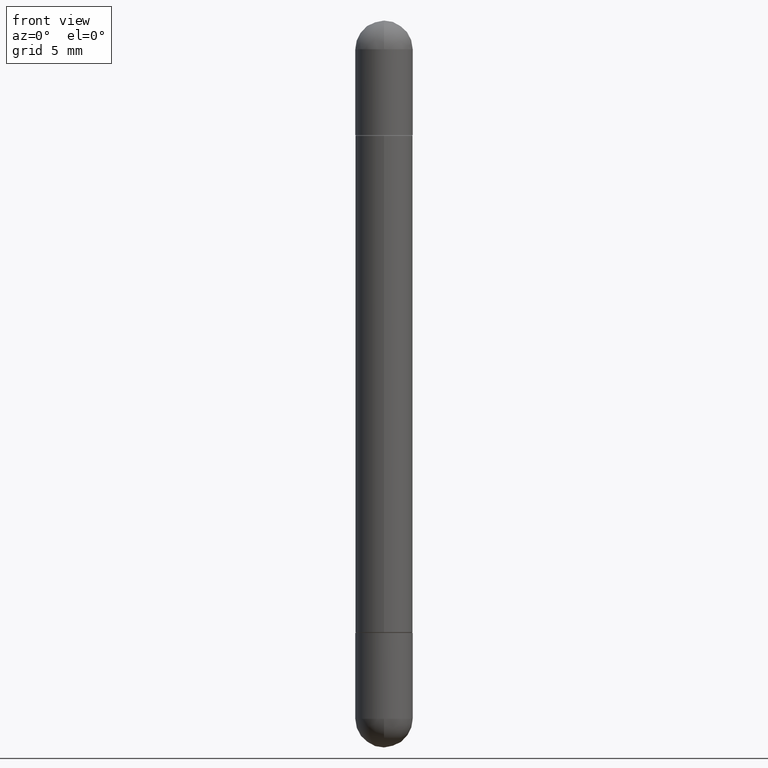
[diagram: clean part render]
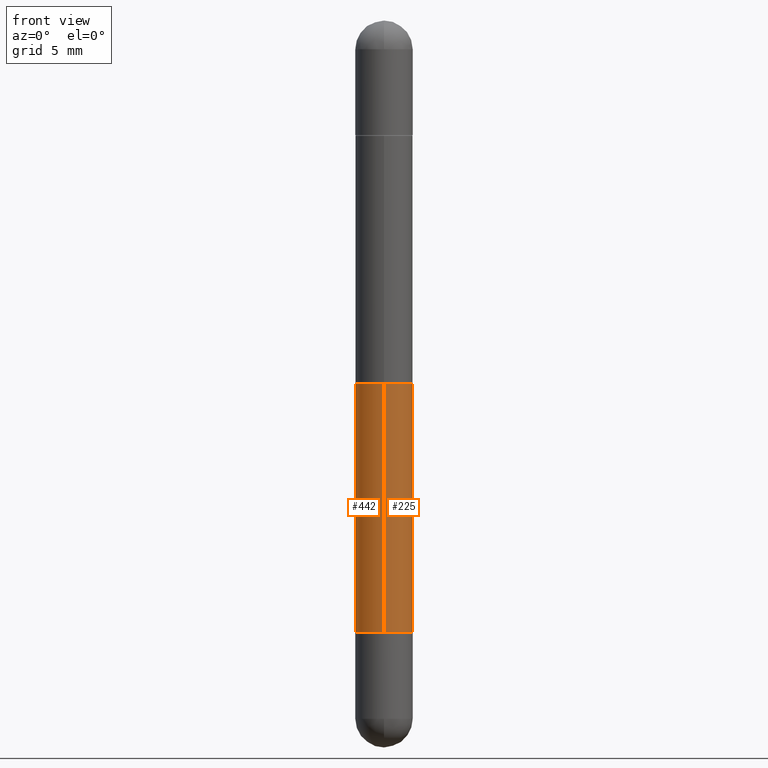
[diagram: same view with one multi-face feature highlighted, each face labeled with its STEP entity id]
A machine part, front view. The highlighted faces form ONE feature: a constant-radius fillet chain: 2 tangent blend faces with common blend radius 1.4999 mm. The faces share edges in the B-rep.
Their STEP definitions:
[1] entity #442 (Cylinder):
#11 = DIRECTION ( 'NONE',  ( -6.982962677686265922E-15, -1.000000000000000000, 4.626330217890358292E-15 ) ) ;
#16 = CARTESIAN_POINT ( 'NONE',  ( -4.123439461173441546E-16, -0.05905000000000452248, -0.2372000000000003272 ) ) ;
#43 = CIRCLE ( 'NONE', #435, 0.05905000000000014404 ) ;
#56 = ORIENTED_EDGE ( 'NONE', *, *, #523, .F. ) ;
#74 = CARTESIAN_POINT ( 'NONE',  ( 3.084079737968140316E-29, -4.387579534763115600E-15, -0.2372000000000001330 ) ) ;
#120 = AXIS2_PLACEMENT_3D ( 'NONE', #693, #818, #762 ) ;
#128 = DIRECTION ( 'NONE',  ( -2.449821064396012218E-29, 3.485248657370018430E-15, -1.000000000000000000 ) ) ;
#194 = EDGE_CURVE ( 'NONE', #332, #723, #757, .T. ) ;
#199 = VERTEX_POINT ( 'NONE', #269 ) ;
#205 = VECTOR ( 'NONE', #402, 39.37007874015748143 ) ;
#240 = CARTESIAN_POINT ( 'NONE',  ( 4.051124067684279981E-16, 0.05904999999999575866, -1.258900000000000352 ) ) ;
#262 = LINE ( 'NONE', #461, #530 ) ;
#269 = CARTESIAN_POINT ( 'NONE',  ( 4.051124067684407678E-16, 0.05904999999999576560, -0.2371999999999999387 ) ) ;
#282 = ORIENTED_EDGE ( 'NONE', *, *, #416, .T. ) ;
#332 = VERTEX_POINT ( 'NONE', #240 ) ;
#360 = EDGE_LOOP ( 'NONE', ( #56, #282, #453, #601 ) ) ;
#402 = DIRECTION ( 'NONE',  ( -2.449821064396012218E-29, 3.485248657370018430E-15, -1.000000000000000000 ) ) ;
#411 = AXIS2_PLACEMENT_3D ( 'NONE', #591, #775, #11 ) ;
#416 = EDGE_CURVE ( 'NONE', #199, #332, #262, .T. ) ;
#435 = AXIS2_PLACEMENT_3D ( 'NONE', #74, #778, #787 ) ;
#442 = ADVANCED_FACE ( 'NONE', ( #760 ), #516, .T. ) ;
#453 = ORIENTED_EDGE ( 'NONE', *, *, #194, .T. ) ;
#461 = CARTESIAN_POINT ( 'NONE',  ( 4.051124067684094599E-16, 0.05905000000000008159, -1.496099999999999985 ) ) ;
#495 = CARTESIAN_POINT ( 'NONE',  ( -4.123439461173442039E-16, -0.05905000000000452942, -1.258899999999999686 ) ) ;
#516 = CYLINDRICAL_SURFACE ( 'NONE', #120, 0.05905000000000008159 ) ;
#523 = EDGE_CURVE ( 'NONE', #199, #541, #43, .T. ) ;
#530 = VECTOR ( 'NONE', #128, 39.37007874015748143 ) ;
#541 = VERTEX_POINT ( 'NONE', #16 ) ;
#561 = EDGE_CURVE ( 'NONE', #541, #723, #662, .T. ) ;
#591 = CARTESIAN_POINT ( 'NONE',  ( 3.084079737968140316E-29, -4.387579534763115600E-15, -1.258900000000000130 ) ) ;
#601 = ORIENTED_EDGE ( 'NONE', *, *, #561, .F. ) ;
#662 = LINE ( 'NONE', #671, #205 ) ;
#671 = CARTESIAN_POINT ( 'NONE',  ( -4.123439461173745750E-16, -0.05905000000000008159, -1.496100000000000430 ) ) ;
#693 = CARTESIAN_POINT ( 'NONE',  ( 0.000000000000000000, 0.000000000000000000, -1.496100000000000207 ) ) ;
#723 = VERTEX_POINT ( 'NONE', #495 ) ;
#757 = CIRCLE ( 'NONE', #411, 0.05905000000000014404 ) ;
#760 = FACE_OUTER_BOUND ( 'NONE', #360, .T. ) ;
#762 = DIRECTION ( 'NONE',  ( -6.982962677686265922E-15, -1.000000000000000000, -4.626330217890363025E-15 ) ) ;
#775 = DIRECTION ( 'NONE',  ( -2.449821064396012218E-29, 3.485248657370018036E-15, 1.000000000000000000 ) ) ;
#778 = DIRECTION ( 'NONE',  ( 2.449821064396012218E-29, -3.485248657370018036E-15, 1.000000000000000000 ) ) ;
#787 = DIRECTION ( 'NONE',  ( -6.982962677686265922E-15, -1.000000000000000000, -3.469747663417768719E-15 ) ) ;
#818 = DIRECTION ( 'NONE',  ( -2.449821064396012218E-29, 3.485248657370018036E-15, -1.000000000000000000 ) ) ;
[2] entity #225 (Cylinder):
#6 = ORIENTED_EDGE ( 'NONE', *, *, #561, .T. ) ;
#16 = CARTESIAN_POINT ( 'NONE',  ( -4.123439461173441546E-16, -0.05905000000000452248, -0.2372000000000003272 ) ) ;
#30 = AXIS2_PLACEMENT_3D ( 'NONE', #219, #156, #672 ) ;
#128 = DIRECTION ( 'NONE',  ( -2.449821064396012218E-29, 3.485248657370018430E-15, -1.000000000000000000 ) ) ;
#156 = DIRECTION ( 'NONE',  ( -2.449821064396012218E-29, 3.485248657370018036E-15, -1.000000000000000000 ) ) ;
#165 = DIRECTION ( 'NONE',  ( -2.449821064396012218E-29, 3.485248657370018036E-15, 1.000000000000000000 ) ) ;
#199 = VERTEX_POINT ( 'NONE', #269 ) ;
#205 = VECTOR ( 'NONE', #402, 39.37007874015748143 ) ;
#219 = CARTESIAN_POINT ( 'NONE',  ( 0.000000000000000000, 0.000000000000000000, -1.496100000000000207 ) ) ;
#225 = ADVANCED_FACE ( 'NONE', ( #277 ), #529, .T. ) ;
#240 = CARTESIAN_POINT ( 'NONE',  ( 4.051124067684279981E-16, 0.05904999999999575866, -1.258900000000000352 ) ) ;
#254 = CIRCLE ( 'NONE', #311, 0.05905000000000014404 ) ;
#262 = LINE ( 'NONE', #461, #530 ) ;
#269 = CARTESIAN_POINT ( 'NONE',  ( 4.051124067684407678E-16, 0.05904999999999576560, -0.2371999999999999387 ) ) ;
#277 = FACE_OUTER_BOUND ( 'NONE', #816, .T. ) ;
#311 = AXIS2_PLACEMENT_3D ( 'NONE', #615, #165, #554 ) ;
#332 = VERTEX_POINT ( 'NONE', #240 ) ;
#402 = DIRECTION ( 'NONE',  ( -2.449821064396012218E-29, 3.485248657370018430E-15, -1.000000000000000000 ) ) ;
#416 = EDGE_CURVE ( 'NONE', #199, #332, #262, .T. ) ;
#461 = CARTESIAN_POINT ( 'NONE',  ( 4.051124067684094599E-16, 0.05905000000000008159, -1.496099999999999985 ) ) ;
#469 = EDGE_CURVE ( 'NONE', #541, #199, #784, .T. ) ;
#495 = CARTESIAN_POINT ( 'NONE',  ( -4.123439461173442039E-16, -0.05905000000000452942, -1.258899999999999686 ) ) ;
#512 = ORIENTED_EDGE ( 'NONE', *, *, #469, .F. ) ;
#529 = CYLINDRICAL_SURFACE ( 'NONE', #30, 0.05905000000000008159 ) ;
#530 = VECTOR ( 'NONE', #128, 39.37007874015748143 ) ;
#541 = VERTEX_POINT ( 'NONE', #16 ) ;
#554 = DIRECTION ( 'NONE',  ( -6.982962677686265922E-15, -1.000000000000000000, 4.626330217890358292E-15 ) ) ;
#561 = EDGE_CURVE ( 'NONE', #541, #723, #662, .T. ) ;
#571 = DIRECTION ( 'NONE',  ( 2.449821064396012218E-29, -3.485248657370018036E-15, 1.000000000000000000 ) ) ;
#587 = AXIS2_PLACEMENT_3D ( 'NONE', #645, #571, #706 ) ;
#615 = CARTESIAN_POINT ( 'NONE',  ( 3.084079737968140316E-29, -4.387579534763115600E-15, -1.258900000000000130 ) ) ;
#645 = CARTESIAN_POINT ( 'NONE',  ( 3.084079737968140316E-29, -4.387579534763115600E-15, -0.2372000000000001330 ) ) ;
#662 = LINE ( 'NONE', #671, #205 ) ;
#670 = ORIENTED_EDGE ( 'NONE', *, *, #416, .F. ) ;
#671 = CARTESIAN_POINT ( 'NONE',  ( -4.123439461173745750E-16, -0.05905000000000008159, -1.496100000000000430 ) ) ;
#672 = DIRECTION ( 'NONE',  ( -6.982962677686265922E-15, -1.000000000000000000, -4.626330217890363025E-15 ) ) ;
#706 = DIRECTION ( 'NONE',  ( -6.982962677686265922E-15, -1.000000000000000000, -3.469747663417768719E-15 ) ) ;
#710 = EDGE_CURVE ( 'NONE', #723, #332, #254, .T. ) ;
#723 = VERTEX_POINT ( 'NONE', #495 ) ;
#769 = ORIENTED_EDGE ( 'NONE', *, *, #710, .T. ) ;
#784 = CIRCLE ( 'NONE', #587, 0.05905000000000014404 ) ;
#816 = EDGE_LOOP ( 'NONE', ( #670, #512, #6, #769 ) ) ;